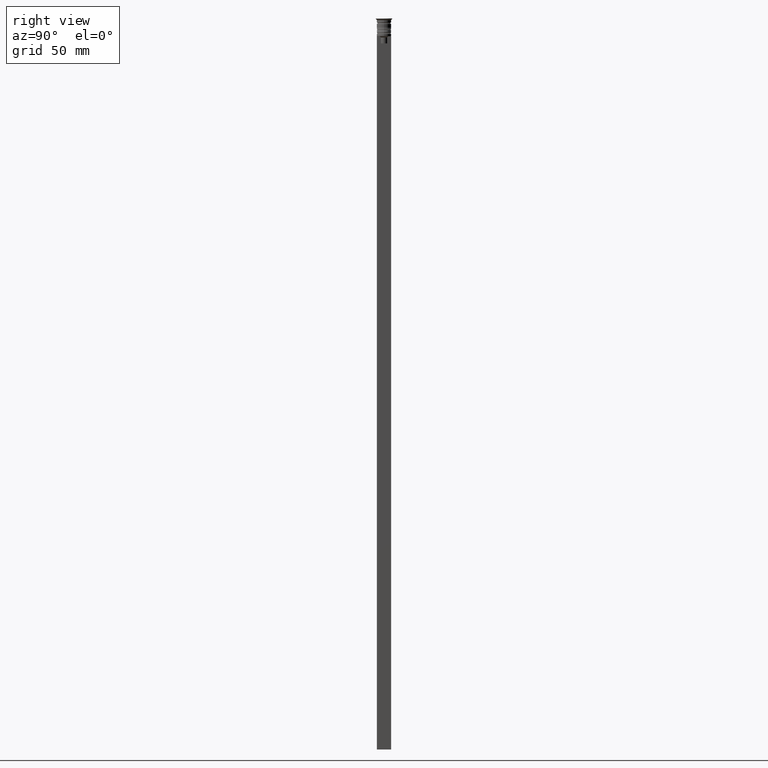
[diagram: clean part render]
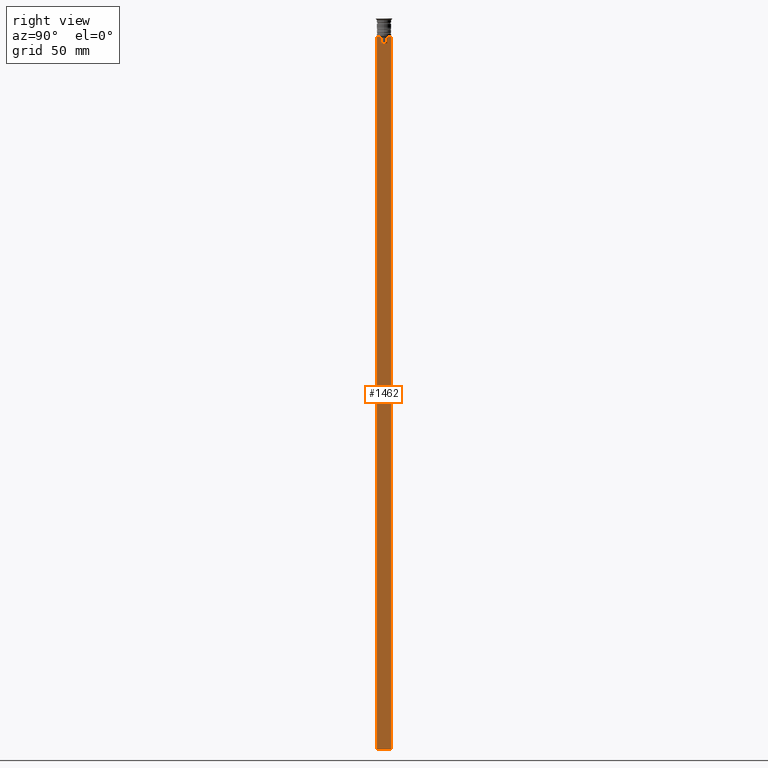
[diagram: same view with one face highlighted and labeled with its STEP entity id]
A machine part, right view. The second image highlights one B-rep face of the part: STEP entity #1462.
In plain terms, the highlighted planar face has unit normal (-1, 0, 0).
Its self-contained STEP definition (entity closure, byte-faithful):
#8 = ORIENTED_EDGE ( 'NONE', *, *, #1202, .T. ) ;
#16 = CARTESIAN_POINT ( 'NONE',  ( 0.4999999999999998890, -3.000000000000000000, -7.500000000000000000 ) ) ;
#34 = B_SPLINE_CURVE_WITH_KNOTS ( 'NONE', 3,
 ( #638, #1582, #1765, #1177 ),
 .UNSPECIFIED., .F., .F.,
 ( 4, 4 ),
 ( 0.007225659348748082224, 0.007950554640278054835 ),
 .UNSPECIFIED. ) ;
#48 = ORIENTED_EDGE ( 'NONE', *, *, #1716, .F. ) ;
#82 = ORIENTED_EDGE ( 'NONE', *, *, #456, .T. ) ;
#87 = CARTESIAN_POINT ( 'NONE',  ( 0.4999999999999998890, 1.833030277982335754, -7.500000000000000000 ) ) ;
#107 = EDGE_CURVE ( 'NONE', #1941, #1473, #1750, .T. ) ;
#145 = VERTEX_POINT ( 'NONE', #735 ) ;
#165 = VERTEX_POINT ( 'NONE', #531 ) ;
#226 = EDGE_CURVE ( 'NONE', #2185, #1883, #1431, .T. ) ;
#230 = ORIENTED_EDGE ( 'NONE', *, *, #1573, .T. ) ;
#237 = CARTESIAN_POINT ( 'NONE',  ( 0.4999999999999998890, 1.307669683062199439, -8.000000000000000000 ) ) ;
#427 = ORIENTED_EDGE ( 'NONE', *, *, #226, .T. ) ;
#445 = CARTESIAN_POINT ( 'NONE',  ( 0.4999999999999998890, 1.307669683062199439, -8.000000000000000000 ) ) ;
#446 = ORIENTED_EDGE ( 'NONE', *, *, #1242, .T. ) ;
#456 = EDGE_CURVE ( 'NONE', #1284, #971, #635, .T. ) ;
#491 = CARTESIAN_POINT ( 'NONE',  ( 0.4999999999999998890, 1.307669683062199439, 0.000000000000000000 ) ) ;
#499 = ORIENTED_EDGE ( 'NONE', *, *, #1385, .T. ) ;
#503 = CARTESIAN_POINT ( 'NONE',  ( 0.4999999999999998890, -2.856571371417139904, -7.500000000000000000 ) ) ;
#524 = VERTEX_POINT ( 'NONE', #823 ) ;
#531 = CARTESIAN_POINT ( 'NONE',  ( 0.4999999999999998890, 3.000000000000000000, -307.5000000000000000 ) ) ;
#537 = VERTEX_POINT ( 'NONE', #1923 ) ;
#562 = CARTESIAN_POINT ( 'NONE',  ( 0.4999999999999998890, -3.000000000000000000, -7.500000000000000000 ) ) ;
#635 = LINE ( 'NONE', #1726, #1827 ) ;
#638 = CARTESIAN_POINT ( 'NONE',  ( 0.4999999999999998890, -1.307669683062199439, -8.000000000000000000 ) ) ;
#689 = DIRECTION ( 'NONE',  ( 0.000000000000000000, 0.000000000000000000, -1.000000000000000000 ) ) ;
#707 = CARTESIAN_POINT ( 'NONE',  ( 0.4999999999999998890, -3.000000000000000000, -1.417237469701779329 ) ) ;
#708 = CARTESIAN_POINT ( 'NONE',  ( 0.4999999999999998890, -3.000000000000000000, -7.500000000000000000 ) ) ;
#726 = ORIENTED_EDGE ( 'NONE', *, *, #1641, .T. ) ;
#728 = DIRECTION ( 'NONE',  ( -1.000000000000000000, 0.000000000000000000, 0.000000000000000000 ) ) ;
#735 = CARTESIAN_POINT ( 'NONE',  ( 0.4999999999999998890, -3.000000000000000000, -307.5000000000000000 ) ) ;
#741 = CARTESIAN_POINT ( 'NONE',  ( 0.4999999999999998890, -3.000000000000000000, -1.417237469701779329 ) ) ;
#744 = DIRECTION ( 'NONE',  ( 0.000000000000000000, -1.000000000000000000, 0.000000000000000000 ) ) ;
#823 = CARTESIAN_POINT ( 'NONE',  ( 0.4999999999999998890, 3.000000000000000000, -7.500000000000000000 ) ) ;
#854 = LINE ( 'NONE', #1572, #892 ) ;
#892 = VECTOR ( 'NONE', #2289, 1000.000000000000000 ) ;
#923 = VECTOR ( 'NONE', #1093, 1000.000000000000000 ) ;
#964 = LINE ( 'NONE', #1364, #1904 ) ;
#971 = VERTEX_POINT ( 'NONE', #503 ) ;
#1005 = DIRECTION ( 'NONE',  ( 0.000000000000000000, -1.000000000000000000, 0.000000000000000000 ) ) ;
#1009 = ORIENTED_EDGE ( 'NONE', *, *, #107, .T. ) ;
#1010 = EDGE_LOOP ( 'NONE', ( #427, #2315, #499, #1009, #8, #230, #82, #1328, #1892, #726, #48, #446 ) ) ;
#1093 = DIRECTION ( 'NONE',  ( 0.000000000000000000, -1.000000000000000000, 0.000000000000000000 ) ) ;
#1147 = AXIS2_PLACEMENT_3D ( 'NONE', #741, #728, #2148 ) ;
#1159 = LINE ( 'NONE', #1722, #1337 ) ;
#1173 = DIRECTION ( 'NONE',  ( 0.000000000000000000, -1.000000000000000000, 0.000000000000000000 ) ) ;
#1177 = CARTESIAN_POINT ( 'NONE',  ( 0.4999999999999998890, -1.833030277982335754, -7.500000000000000000 ) ) ;
#1196 = VERTEX_POINT ( 'NONE', #445 ) ;
#1202 = EDGE_CURVE ( 'NONE', #1473, #537, #1159, .T. ) ;
#1242 = EDGE_CURVE ( 'NONE', #524, #2185, #964, .T. ) ;
#1282 = FACE_OUTER_BOUND ( 'NONE', #1010, .T. ) ;
#1284 = VERTEX_POINT ( 'NONE', #1527 ) ;
#1293 = LINE ( 'NONE', #708, #1463 ) ;
#1309 = CARTESIAN_POINT ( 'NONE',  ( 0.4999999999999998890, 1.659046061654642967, -7.667851756010362507 ) ) ;
#1328 = ORIENTED_EDGE ( 'NONE', *, *, #2184, .T. ) ;
#1331 = EDGE_CURVE ( 'NONE', #1464, #145, #1402, .T. ) ;
#1337 = VECTOR ( 'NONE', #2043, 1000.000000000000000 ) ;
#1342 = DIRECTION ( 'NONE',  ( 0.000000000000000000, -1.000000000000000000, 0.000000000000000000 ) ) ;
#1364 = CARTESIAN_POINT ( 'NONE',  ( 0.4999999999999998890, -3.000000000000000000, -7.500000000000000000 ) ) ;
#1385 = EDGE_CURVE ( 'NONE', #1196, #1941, #2318, .T. ) ;
#1386 = CARTESIAN_POINT ( 'NONE',  ( 0.4999999999999998890, 1.399999999999997691, -10.49999999999999822 ) ) ;
#1402 = LINE ( 'NONE', #707, #1942 ) ;
#1406 = CARTESIAN_POINT ( 'NONE',  ( 0.4999999999999998890, 3.000000000000000000, -1.417237469701779329 ) ) ;
#1426 = DIRECTION ( 'NONE',  ( 0.000000000000000000, 0.000000000000000000, -1.000000000000000000 ) ) ;
#1427 = CARTESIAN_POINT ( 'NONE',  ( 0.4999999999999998890, 2.856571371417139904, -7.500000000000000000 ) ) ;
#1431 = LINE ( 'NONE', #16, #923 ) ;
#1462 = ADVANCED_FACE ( 'NONE', ( #1282 ), #1805, .F. ) ;
#1463 = VECTOR ( 'NONE', #744, 1000.000000000000000 ) ;
#1464 = VERTEX_POINT ( 'NONE', #562 ) ;
#1473 = VERTEX_POINT ( 'NONE', #2331 ) ;
#1489 = CARTESIAN_POINT ( 'NONE',  ( 0.4999999999999998890, 1.833030277982335754, -7.500000000000000000 ) ) ;
#1524 = CARTESIAN_POINT ( 'NONE',  ( 0.4999999999999998890, 1.484355510416485835, -7.834966642958598015 ) ) ;
#1527 = CARTESIAN_POINT ( 'NONE',  ( 0.4999999999999998890, -1.833030277982335754, -7.500000000000000000 ) ) ;
#1572 = CARTESIAN_POINT ( 'NONE',  ( 0.4999999999999998890, -3.000000000000000000, -307.5000000000000000 ) ) ;
#1573 = EDGE_CURVE ( 'NONE', #537, #1284, #34, .T. ) ;
#1582 = CARTESIAN_POINT ( 'NONE',  ( 0.4999999999999998890, -1.484307477388859153, -7.835011508197190722 ) ) ;
#1638 = VECTOR ( 'NONE', #1005, 1000.000000000000000 ) ;
#1641 = EDGE_CURVE ( 'NONE', #145, #165, #854, .T. ) ;
#1716 = EDGE_CURVE ( 'NONE', #524, #165, #1961, .T. ) ;
#1722 = CARTESIAN_POINT ( 'NONE',  ( 0.4999999999999998890, -1.307669683062199439, 0.000000000000000000 ) ) ;
#1726 = CARTESIAN_POINT ( 'NONE',  ( 0.4999999999999998890, -3.000000000000000000, -7.500000000000000000 ) ) ;
#1750 = LINE ( 'NONE', #1386, #1638 ) ;
#1765 = CARTESIAN_POINT ( 'NONE',  ( 0.4999999999999998890, -1.659011726860414093, -7.667884880598472286 ) ) ;
#1805 = PLANE ( 'NONE',  #1147 ) ;
#1827 = VECTOR ( 'NONE', #1173, 1000.000000000000000 ) ;
#1868 = VECTOR ( 'NONE', #1426, 1000.000000000000000 ) ;
#1883 = VERTEX_POINT ( 'NONE', #1489 ) ;
#1885 = CARTESIAN_POINT ( 'NONE',  ( 0.4999999999999998890, 1.307669683062199439, -10.49999999999999822 ) ) ;
#1892 = ORIENTED_EDGE ( 'NONE', *, *, #1331, .T. ) ;
#1904 = VECTOR ( 'NONE', #1342, 1000.000000000000000 ) ;
#1923 = CARTESIAN_POINT ( 'NONE',  ( 0.4999999999999998890, -1.307669683062199439, -8.000000000000000000 ) ) ;
#1941 = VERTEX_POINT ( 'NONE', #1885 ) ;
#1942 = VECTOR ( 'NONE', #689, 1000.000000000000000 ) ;
#1961 = LINE ( 'NONE', #1406, #2052 ) ;
#2043 = DIRECTION ( 'NONE',  ( -0.000000000000000000, -0.000000000000000000, 1.000000000000000000 ) ) ;
#2052 = VECTOR ( 'NONE', #2153, 1000.000000000000000 ) ;
#2148 = DIRECTION ( 'NONE',  ( 0.000000000000000000, 0.000000000000000000, 1.000000000000000000 ) ) ;
#2153 = DIRECTION ( 'NONE',  ( 0.000000000000000000, 0.000000000000000000, -1.000000000000000000 ) ) ;
#2184 = EDGE_CURVE ( 'NONE', #971, #1464, #1293, .T. ) ;
#2185 = VERTEX_POINT ( 'NONE', #1427 ) ;
#2269 = B_SPLINE_CURVE_WITH_KNOTS ( 'NONE', 3,
 ( #87, #1309, #1524, #237 ),
 .UNSPECIFIED., .F., .F.,
 ( 4, 4 ),
 ( 0.003278537493109848298, 0.004003794023484941178 ),
 .UNSPECIFIED. ) ;
#2289 = DIRECTION ( 'NONE',  ( 0.000000000000000000, 1.000000000000000000, 0.000000000000000000 ) ) ;
#2302 = EDGE_CURVE ( 'NONE', #1883, #1196, #2269, .T. ) ;
#2315 = ORIENTED_EDGE ( 'NONE', *, *, #2302, .T. ) ;
#2318 = LINE ( 'NONE', #491, #1868 ) ;
#2331 = CARTESIAN_POINT ( 'NONE',  ( 0.4999999999999998890, -1.307669683062199439, -10.49999999999999822 ) ) ;